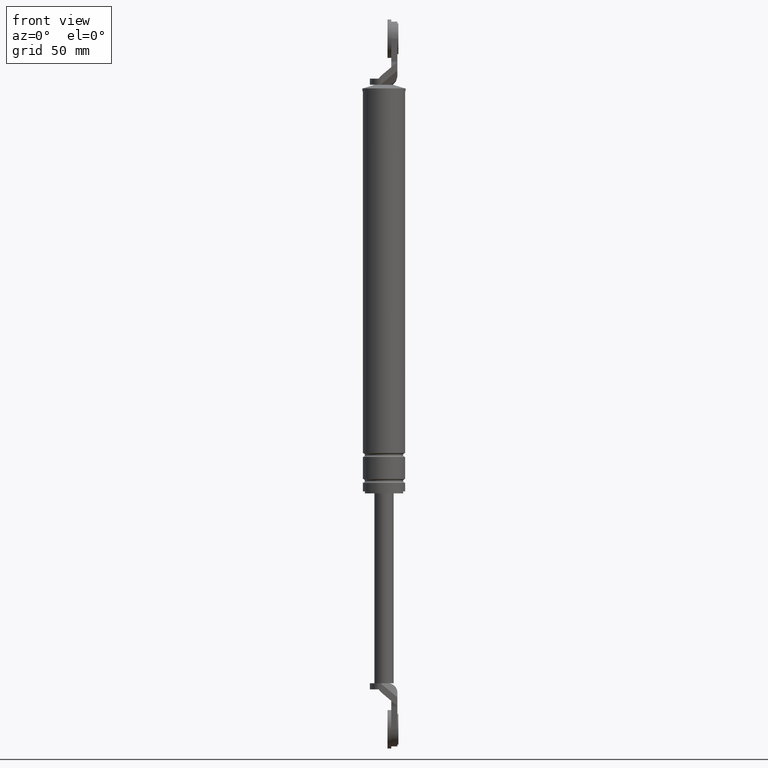
[diagram: clean part render]
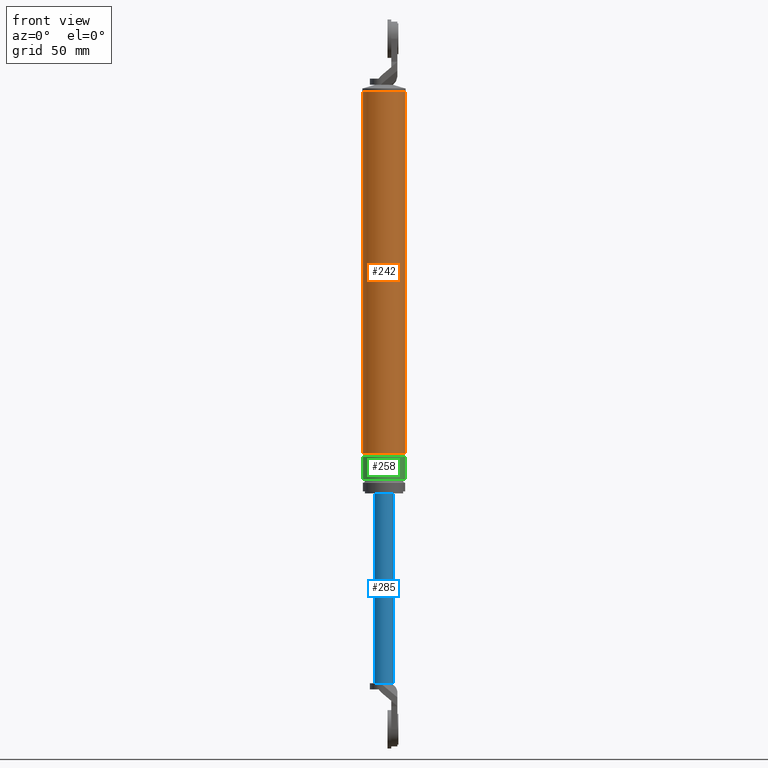
[diagram: same view with three faces highlighted in distinct colors, each labeled with its STEP entity id]
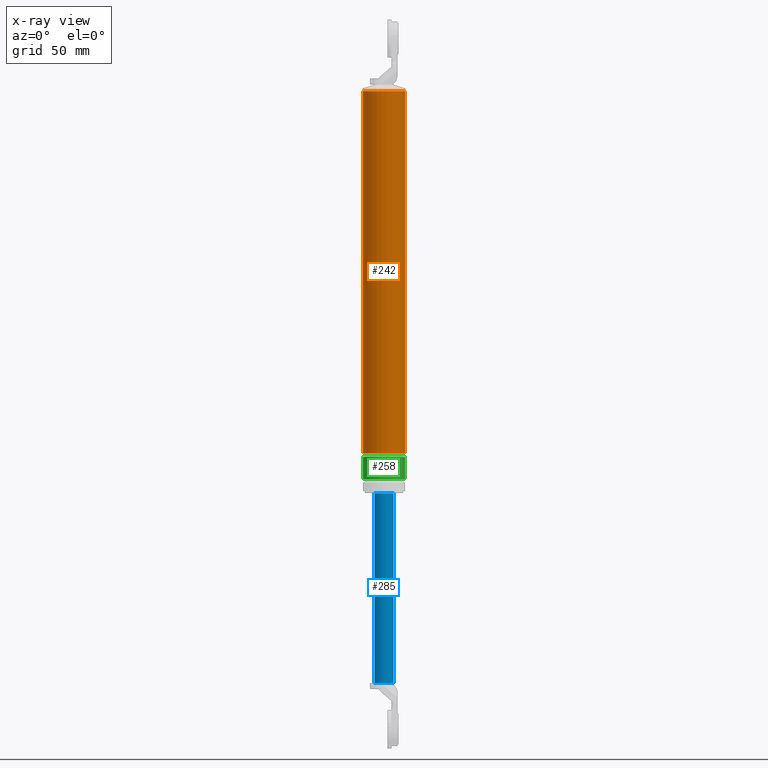
[diagram: x-ray of the same camera — body ghosted, the three highlighted faces saturated]
A machine part, front view with three faces highlighted in distinct colors.
The next image is the same camera in x-ray (body ghosted, the three faces saturated) — at least one of them is partly hidden behind the body in this view.
Their STEP definitions:

[orange] entity #242 — the highlighted cylindrical surface (edge-blend (fillet) strip) has radius 11 mm, axis along (0, 0, 1).
#242=ADVANCED_FACE('',(#676),#675,.T.);
#675=CYLINDRICAL_SURFACE('',#1399,1.10000000000E+001);
#676=FACE_OUTER_BOUND('',#1400,.T.);
#1396=CARTESIAN_POINT('',(0.00000000000E+000,3.58204186421E-014,0.00000000000E+000));
#1397=DIRECTION('',(-0.00000000000E+000,-0.00000000000E+000,1.00000000000E+000));
#1398=DIRECTION('',(1.00000000000E+000,-0.00000000000E+000,-0.00000000000E+000));
#1399=AXIS2_PLACEMENT_3D('',#1396,#1397,#1398);
#1400=EDGE_LOOP('',(#1946,#1947,#1948,#1949));
#1946=ORIENTED_EDGE('',*,*,#2261,.F.);
#1947=ORIENTED_EDGE('',*,*,#2258,.T.);
#1948=ORIENTED_EDGE('',*,*,#2251,.F.);
#1949=ORIENTED_EDGE('',*,*,#2260,.F.);
#2251=EDGE_CURVE('',#2972,#2971,#2979,.T.);
#2258=EDGE_CURVE('',#3027,#2971,#3028,.T.);
#2260=EDGE_CURVE('',#3034,#2972,#3041,.T.);
#2261=EDGE_CURVE('',#3027,#3034,#3047,.T.);
#2971=VERTEX_POINT('',#4050);
#2972=VERTEX_POINT('',#4051);
#2979=CIRCLE('',#4059,1.10000000000E+001);
#3027=VERTEX_POINT('',#4090);
#3028=(BOUNDED_CURVE() B_SPLINE_CURVE(1,(#4091,#4092),.UNSPECIFIED.,.F.,.F.) B_SPLINE_CURVE_WITH_KNOTS((2,2),(4.79386350140E-002,9.52061365048E-001),.UNSPECIFIED.) CURVE() GEOMETRIC_REPRESENTATION_ITEM() RATIONAL_B_SPLINE_CURVE((1.00000000000E+000,1.00000000000E+000)) REPRESENTATION_ITEM('') );
#3034=VERTEX_POINT('',#4093);
#3041=(BOUNDED_CURVE() B_SPLINE_CURVE(1,(#4098,#4099),.UNSPECIFIED.,.F.,.F.) B_SPLINE_CURVE_WITH_KNOTS((2,2),(4.79386350955E-002,9.52061364905E-001),.UNSPECIFIED.) CURVE() GEOMETRIC_REPRESENTATION_ITEM() RATIONAL_B_SPLINE_CURVE((7.50000000000E-001,7.50000000000E-001)) REPRESENTATION_ITEM('') );
#3047=CIRCLE('',#4103,1.10000000000E+001);
#4050=CARTESIAN_POINT('',(1.10000000000E+001,3.58204186421E-014,8.56000000000E+001));
#4051=CARTESIAN_POINT('',(-1.10000000000E+001,3.61192557345E-014,8.56000000000E+001));
#4056=CARTESIAN_POINT('',(0.00000000000E+000,3.58204186421E-014,8.56000000000E+001));
#4057=DIRECTION('',(0.00000000000E+000,0.00000000000E+000,1.00000000000E+000));
#4058=DIRECTION('',(1.00000000000E+000,-1.22460635382E-016,0.00000000000E+000));
#4059=AXIS2_PLACEMENT_3D('',#4056,#4057,#4058);
#4090=CARTESIAN_POINT('',(1.10000000000E+001,3.61192557345E-014,-1.03000015000E+002));
#4091=CARTESIAN_POINT('',(1.10000000000E+001,3.58204186421E-014,-1.03000015017E+002));
#4092=CARTESIAN_POINT('',(1.10000000000E+001,3.58204186421E-014,8.56000000300E+001));
#4093=CARTESIAN_POINT('',(-1.10000000000E+001,3.58204186421E-014,-1.03000015000E+002));
#4098=CARTESIAN_POINT('',(-1.10000000000E+001,3.55271367880E-014,-1.03000015000E+002));
#4099=CARTESIAN_POINT('',(-1.10000000000E+001,3.55271367880E-014,8.56000000000E+001));
#4100=CARTESIAN_POINT('',(0.00000000000E+000,3.58204186421E-014,-1.03000015000E+002));
#4101=DIRECTION('',(-0.00000000000E+000,0.00000000000E+000,-1.00000000000E+000));
#4102=DIRECTION('',(-1.00000000000E+000,-1.22460635382E-016,0.00000000000E+000));
#4103=AXIS2_PLACEMENT_3D('',#4100,#4101,#4102);

[blue] entity #285 — the highlighted cylindrical surface (edge-blend (fillet) strip) has radius 5 mm, axis along (0, 0, 1).
#285=ADVANCED_FACE('',(#1108),#1107,.T.);
#1107=CYLINDRICAL_SURFACE('',#1762,5.00000000000E+000);
#1108=FACE_OUTER_BOUND('',#1763,.T.);
#1759=CARTESIAN_POINT('',(0.00000000000E+000,3.58204186421E-014,0.00000000000E+000));
#1760=DIRECTION('',(-0.00000000000E+000,-0.00000000000E+000,1.00000000000E+000));
#1761=DIRECTION('',(1.00000000000E+000,0.00000000000E+000,0.00000000000E+000));
#1762=AXIS2_PLACEMENT_3D('',#1759,#1760,#1761);
#1763=EDGE_LOOP('',(#2153,#2154,#2155,#2156,#2157));
#2153=ORIENTED_EDGE('',*,*,#2339,.F.);
#2154=ORIENTED_EDGE('',*,*,#2338,.F.);
#2155=ORIENTED_EDGE('',*,*,#2353,.T.);
#2156=ORIENTED_EDGE('',*,*,#2348,.F.);
#2157=ORIENTED_EDGE('',*,*,#2354,.F.);
#2338=EDGE_CURVE('',#3549,#3536,#3556,.T.);
#2339=EDGE_CURVE('',#3536,#3562,#3563,.T.);
#2348=EDGE_CURVE('',#3619,#3620,#3621,.T.);
#2353=EDGE_CURVE('',#3549,#3620,#3651,.T.);
#2354=EDGE_CURVE('',#3562,#3619,#3657,.T.);
#3536=VERTEX_POINT('',#4383);
#3549=VERTEX_POINT('',#4391);
#3556=CIRCLE('',#4399,5.00000000000E+000);
#3562=VERTEX_POINT('',#4400);
#3563=CIRCLE('',#4404,5.00000000000E+000);
#3619=VERTEX_POINT('',#4435);
#3620=VERTEX_POINT('',#4436);
#3621=CIRCLE('',#4440,5.00000000000E+000);
#3651=(BOUNDED_CURVE() B_SPLINE_CURVE(1,(#4453,#4454),.UNSPECIFIED.,.F.,.F.) B_SPLINE_CURVE_WITH_KNOTS((2,2),(8.33333332085E-002,9.16666666563E-001),.UNSPECIFIED.) CURVE() GEOMETRIC_REPRESENTATION_ITEM() RATIONAL_B_SPLINE_CURVE((1.00000000000E+000,1.00000000000E+000)) REPRESENTATION_ITEM('') );
#3657=(BOUNDED_CURVE() B_SPLINE_CURVE(1,(#4455,#4456),.UNSPECIFIED.,.F.,.F.) B_SPLINE_CURVE_WITH_KNOTS((2,2),(8.33333333333E-002,9.16666666667E-001),.UNSPECIFIED.) CURVE() GEOMETRIC_REPRESENTATION_ITEM() RATIONAL_B_SPLINE_CURVE((7.50000000000E-001,7.50000000000E-001)) REPRESENTATION_ITEM('') );
#4383=CARTESIAN_POINT('',(2.00000000000E+000,-4.58257569496E+000,-2.23000015000E+002));
#4391=CARTESIAN_POINT('',(5.00000000000E+000,-1.00793243772E-011,-2.23000015000E+002));
#4396=CARTESIAN_POINT('',(0.00000000000E+000,3.58204186421E-014,-2.23000015000E+002));
#4397=DIRECTION('',(0.00000000000E+000,0.00000000000E+000,-1.00000000000E+000));
#4398=DIRECTION('',(4.00000000000E-001,9.16515138991E-001,0.00000000000E+000));
#4399=AXIS2_PLACEMENT_3D('',#4396,#4397,#4398);
#4400=CARTESIAN_POINT('',(-5.00000000000E+000,8.97827334275E-007,-2.23000015000E+002));
#4401=CARTESIAN_POINT('',(0.00000000000E+000,3.58204186421E-014,-2.23000015000E+002));
#4402=DIRECTION('',(0.00000000000E+000,0.00000000000E+000,-1.00000000000E+000));
#4403=DIRECTION('',(1.00000000000E+000,-0.00000000000E+000,-0.00000000000E+000));
#4404=AXIS2_PLACEMENT_3D('',#4401,#4402,#4403);
#4435=CARTESIAN_POINT('',(-5.00000000000E+000,3.58204186421E-014,-1.24000015000E+002));
#4436=CARTESIAN_POINT('',(5.00000000000E+000,3.61192557345E-014,-1.24000015000E+002));
#4437=CARTESIAN_POINT('',(0.00000000000E+000,3.58204186421E-014,-1.24000015000E+002));
#4438=DIRECTION('',(0.00000000000E+000,0.00000000000E+000,1.00000000000E+000));
#4439=DIRECTION('',(-1.00000000000E+000,-1.22460635382E-016,0.00000000000E+000));
#4440=AXIS2_PLACEMENT_3D('',#4437,#4438,#4439);
#4453=CARTESIAN_POINT('',(5.00000000000E+000,3.58204186421E-014,-2.23000015015E+002));
#4454=CARTESIAN_POINT('',(5.00000000000E+000,3.58204186421E-014,-1.24000015012E+002));
#4455=CARTESIAN_POINT('',(-5.00000000000E+000,3.55271367880E-014,-2.23000015000E+002));
#4456=CARTESIAN_POINT('',(-5.00000000000E+000,3.55271367880E-014,-1.24000015000E+002));

[green] entity #258 — the highlighted cylindrical surface (edge-blend (fillet) strip) has radius 11 mm, axis along (0, 0, 1).
#258=ADVANCED_FACE('',(#836),#835,.T.);
#835=CYLINDRICAL_SURFACE('',#1575,1.10000000000E+001);
#836=FACE_OUTER_BOUND('',#1576,.T.);
#1572=CARTESIAN_POINT('',(0.00000000000E+000,3.58204186421E-014,0.00000000000E+000));
#1573=DIRECTION('',(-0.00000000000E+000,-0.00000000000E+000,1.00000000000E+000));
#1574=DIRECTION('',(1.00000000000E+000,-0.00000000000E+000,-0.00000000000E+000));
#1575=AXIS2_PLACEMENT_3D('',#1572,#1573,#1574);
#1576=EDGE_LOOP('',(#2012,#2013,#2014,#2015));
#2012=ORIENTED_EDGE('',*,*,#2277,.F.);
#2013=ORIENTED_EDGE('',*,*,#2282,.T.);
#2014=ORIENTED_EDGE('',*,*,#2265,.T.);
#2015=ORIENTED_EDGE('',*,*,#2283,.F.);
#2265=EDGE_CURVE('',#3053,#3060,#3073,.T.);
#2277=EDGE_CURVE('',#3116,#3115,#3149,.T.);
#2282=EDGE_CURVE('',#3116,#3053,#3179,.T.);
#2283=EDGE_CURVE('',#3115,#3060,#3185,.T.);
#3053=VERTEX_POINT('',#4104);
#3060=VERTEX_POINT('',#4110);
#3073=CIRCLE('',#4123,1.10000000000E+001);
#3115=VERTEX_POINT('',#4136);
#3116=VERTEX_POINT('',#4137);
#3149=CIRCLE('',#4165,1.10000000000E+001);
#3179=(BOUNDED_CURVE() B_SPLINE_CURVE(1,(#4174,#4175),.UNSPECIFIED.,.F.,.F.) B_SPLINE_CURVE_WITH_KNOTS((2,2),(8.33333343261E-002,9.16666667006E-001),.UNSPECIFIED.) CURVE() GEOMETRIC_REPRESENTATION_ITEM() RATIONAL_B_SPLINE_CURVE((1.00000000000E+000,1.00000000000E+000)) REPRESENTATION_ITEM('') );
#3185=(BOUNDED_CURVE() B_SPLINE_CURVE(1,(#4176,#4177),.UNSPECIFIED.,.F.,.F.) B_SPLINE_CURVE_WITH_KNOTS((2,2),(8.33333333333E-002,9.16666666667E-001),.UNSPECIFIED.) CURVE() GEOMETRIC_REPRESENTATION_ITEM() RATIONAL_B_SPLINE_CURVE((7.50000000000E-001,7.50000000000E-001)) REPRESENTATION_ITEM('') );
#4104=CARTESIAN_POINT('',(1.10000000000E+001,3.61192557345E-014,-1.05000015000E+002));
#4110=CARTESIAN_POINT('',(-1.10000000000E+001,3.58204186421E-014,-1.05000015000E+002));
#4120=CARTESIAN_POINT('',(0.00000000000E+000,3.58204186421E-014,-1.05000015000E+002));
#4121=DIRECTION('',(-0.00000000000E+000,0.00000000000E+000,-1.00000000000E+000));
#4122=DIRECTION('',(-1.00000000000E+000,-1.22460635382E-016,0.00000000000E+000));
#4123=AXIS2_PLACEMENT_3D('',#4120,#4121,#4122);
#4136=CARTESIAN_POINT('',(-1.10000000000E+001,3.58204186421E-014,-1.16500015000E+002));
#4137=CARTESIAN_POINT('',(1.10000000000E+001,3.61192557345E-014,-1.16500015000E+002));
#4162=CARTESIAN_POINT('',(0.00000000000E+000,3.58204186421E-014,-1.16500015000E+002));
#4163=DIRECTION('',(-0.00000000000E+000,0.00000000000E+000,-1.00000000000E+000));
#4164=DIRECTION('',(-1.00000000000E+000,-1.22460635382E-016,0.00000000000E+000));
#4165=AXIS2_PLACEMENT_3D('',#4162,#4163,#4164);
#4174=CARTESIAN_POINT('',(1.10000000000E+001,3.58204186421E-014,-1.16500014986E+002));
#4175=CARTESIAN_POINT('',(1.10000000000E+001,3.58204186421E-014,-1.05000014995E+002));
#4176=CARTESIAN_POINT('',(-1.10000000000E+001,3.55271367880E-014,-1.16500015000E+002));
#4177=CARTESIAN_POINT('',(-1.10000000000E+001,3.55271367880E-014,-1.05000015000E+002));